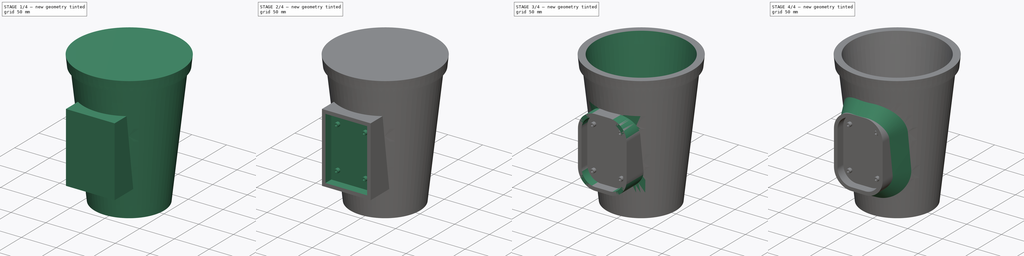
[diagram: build sequence overview — one tinted view per stage of 4, left to right]
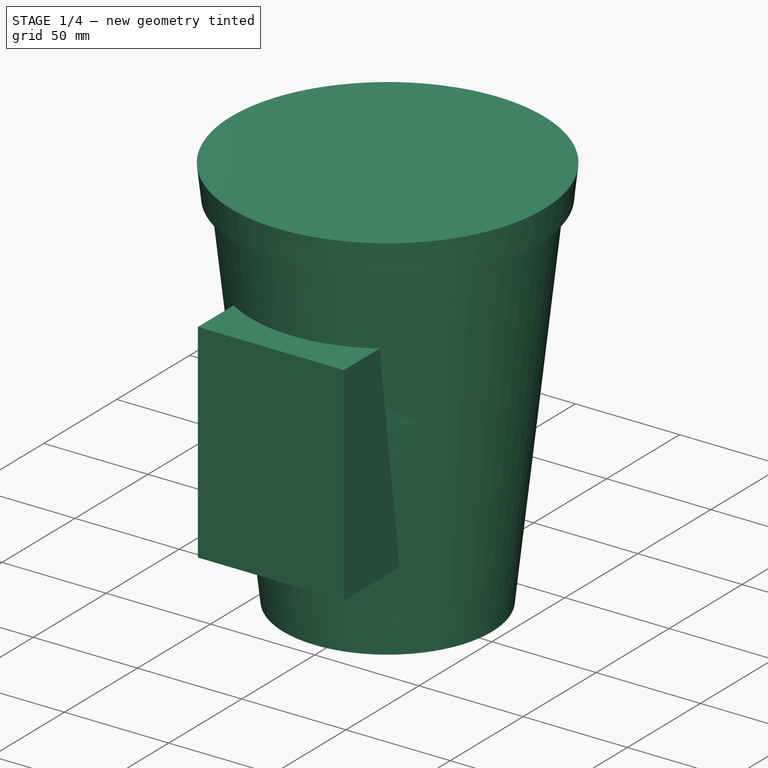
[diagram: stage 1 of 4 — iso view after this stage's code; geometry added in this stage tinted green]
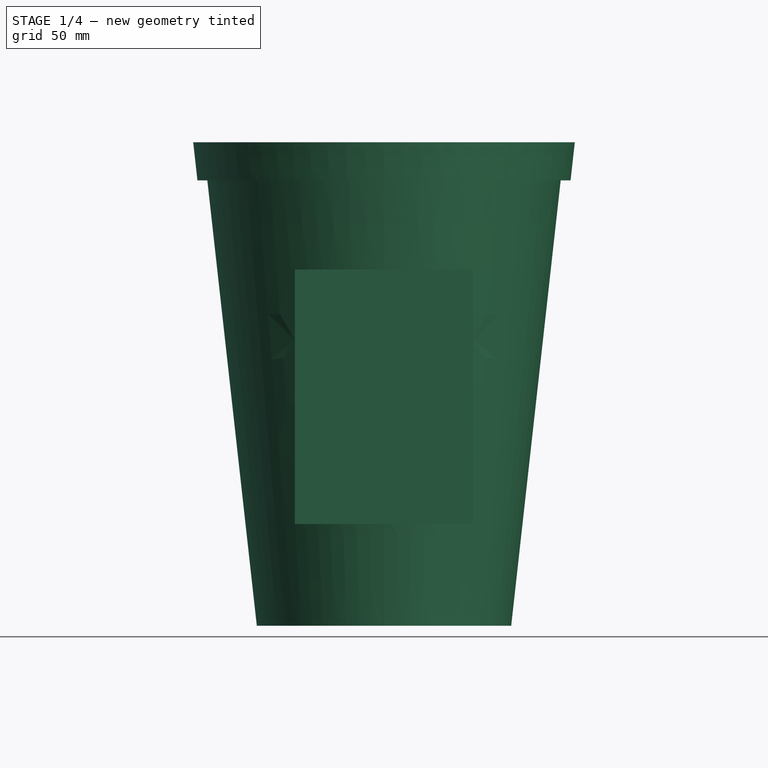
[diagram: stage 1 of 4 — front view after this stage's code; geometry added in this stage tinted green]
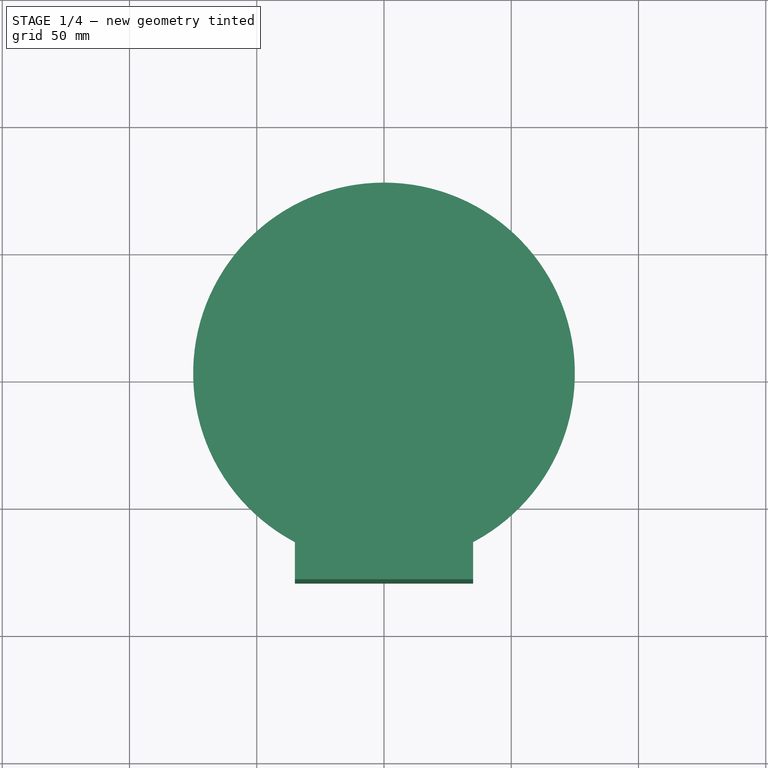
[diagram: stage 1 of 4 — top view after this stage's code; geometry added in this stage tinted green]
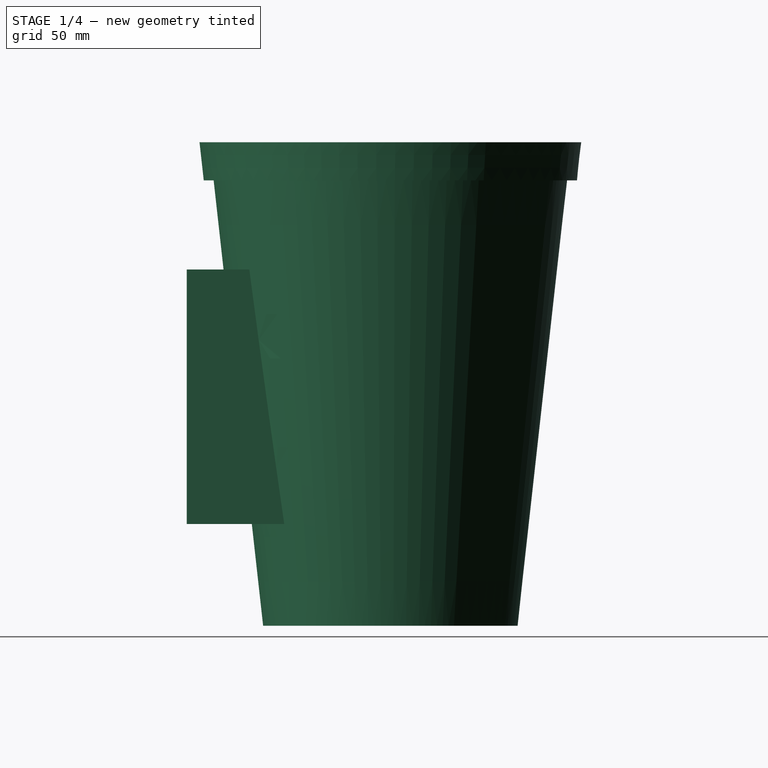
[diagram: stage 1 of 4 — right view after this stage's code; geometry added in this stage tinted green]
FCSTD DOCUMENT  (FreeCAD 0.19R14555 (Git shallow))
Label: vaso_pianta_suono
License: All rights reserved
LicenseURL: http://en.wikipedia.org/wiki/All_rights_reserved
objects: Sketcher::SketchObject×7, PartDesign::Pad×2, PartDesign::Revolution×2, PartDesign::Pocket×2, PartDesign::Mirrored×2, PartDesign::Fillet×2, PartDesign::MultiTransform×1, PartDesign::Groove×1, PartDesign::PolarPattern×1, PartDesign::Chamfer×1, PartDesign::Body×1
note: 32 computed .brp shape members not serialized (recipe doc carries the construction recipe); baked Part::Feature solids carry a one-line shape summary decoded from their .brp

FEATURE [Sketcher::SketchObject] Sketch
  FullyConstrained = true
  MapMode = 5
  Placement = pos=(0,0,0) rot=(1,0,0;1.5708rad)
  Support = -> [XZ_Plane]
  sketch-geometry (4):
    g0: LineSegment StartX=-35 StartY=50 StartZ=0 EndX=35 EndY=50 EndZ=0
    g1: LineSegment StartX=35 StartY=50 StartZ=0 EndX=35 EndY=-50 EndZ=0
    g2: LineSegment StartX=35 StartY=-50 StartZ=0 EndX=-35 EndY=-50 EndZ=0
    g3: LineSegment StartX=-35 StartY=-50 StartZ=0 EndX=-35 EndY=50 EndZ=0
  constraints (12):
    c: Coincident(g0,g1)
    c: Coincident(g1,g2)
    c: Coincident(g2,g3)
    c: Coincident(g3,g0)
    c: Horizontal(g0)
    c: Horizontal(g2)
    c: Vertical(g1)
    c: Vertical(g3)
    c: DistanceX(g0,g0) = 70
    c: DistanceY(g1,g1) = 100
    c: DistanceX(g-1,g0) = 35
    c: DistanceY(g-1,g0) = 50
FEATURE [PartDesign::Pad] Pad
  Direction = (1,1,1)
  Length = 80
  Length2 = 100
  Placement = pos=(0,0,0) rot=(1,0,0;1.5708rad)
  Profile = -> Sketch
  Type = 0
FEATURE [Sketcher::SketchObject] Sketch001
  FullyConstrained = true
  MapMode = 5
  Placement = pos=(0,0,0) rot=(0.57735,0.57735,0.57735;2.0944rad)
  Support = -> [YZ_Plane]
  sketch-geometry (4):
    g0: LineSegment StartX=-70 StartY=90 StartZ=0 EndX=-50 EndY=-90 EndZ=0
    g1: LineSegment StartX=-50 StartY=-90 StartZ=0 EndX=0 EndY=-90 EndZ=0
    g2: LineSegment StartX=0 StartY=-90 StartZ=0 EndX=0 EndY=90 EndZ=0
    g3: LineSegment StartX=0 StartY=90 StartZ=0 EndX=-70 EndY=90 EndZ=0
  constraints (12):
    c: Coincident(g0,g1)
    c: PointOnObject(g1,g-2)
    c: Horizontal(g1)
    c: Coincident(g1,g2)
    c: Vertical(g2)
    c: Coincident(g2,g3)
    c: Coincident(g3,g0)
    c: Horizontal(g3)
    c: DistanceY(g2,g2) = 180
    c: DistanceX(g1,g1) = 50
    c: DistanceX(g3,g3) = 70
    c: DistanceY(g-1,g2) = 90
FEATURE [PartDesign::Revolution] Revolution
  Angle = 360
  Axis = (-2e-16,3e-16,1)
  Base = (0,0,0)
  BaseFeature = -> Pad
  Placement = pos=(0,0,0) rot=(1,0,0;1.5708rad)
  Profile = -> Sketch001
  ReferenceAxis = -> Sketch001 [V_Axis]
FEATURE [Sketcher::SketchObject] Sketch002
  ExternalGeometry = -> [Revolution]
  FullyConstrained = true
  MapMode = 5
  Placement = pos=(0,0,0) rot=(0.57735,0.57735,0.57735;2.0944rad)
  Support = -> [YZ_Plane]
  sketch-geometry (4):
    g0: LineSegment StartX=-75 StartY=100 StartZ=0 EndX=0 EndY=100 EndZ=0
    g1: LineSegment StartX=0 StartY=100 StartZ=0 EndX=0 EndY=85 EndZ=0
    g2: LineSegment StartX=0 StartY=85 StartZ=0 EndX=-73.3333 EndY=85 EndZ=0
    g3: LineSegment StartX=-73.3333 StartY=85 StartZ=0 EndX=-75 EndY=100 EndZ=0
  constraints (12):
    c: PointOnObject(g0,g-2)
    c: Horizontal(g0)
    c: Coincident(g0,g1)
    c: PointOnObject(g1,g-2)
    c: Coincident(g1,g2)
    c: Horizontal(g2)
    c: Coincident(g2,g3)
    c: Coincident(g3,g0)
    c: DistanceY(g1,g1) = 15
    c: DistanceX(g0,g0) = 75
    c: DistanceY(g-1,g1) = 85
    c: Parallel(g-3,g3)
FEATURE [PartDesign::Revolution] Revolution001
  Angle = 360
  Axis = (-2e-16,3e-16,1)
  Base = (0,0,0)
  BaseFeature = -> Revolution
  Placement = pos=(0,0,0) rot=(1,0,0;1.5708rad)
  Profile = -> Sketch002
  ReferenceAxis = -> Sketch002 [V_Axis]
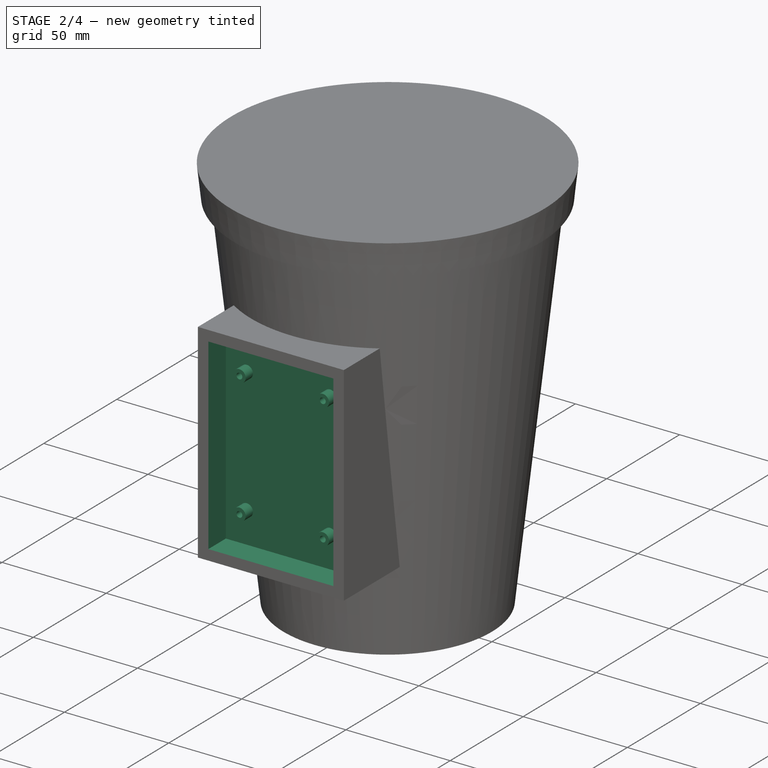
[diagram: stage 2 of 4 — iso view after this stage's code; geometry added in this stage tinted green]
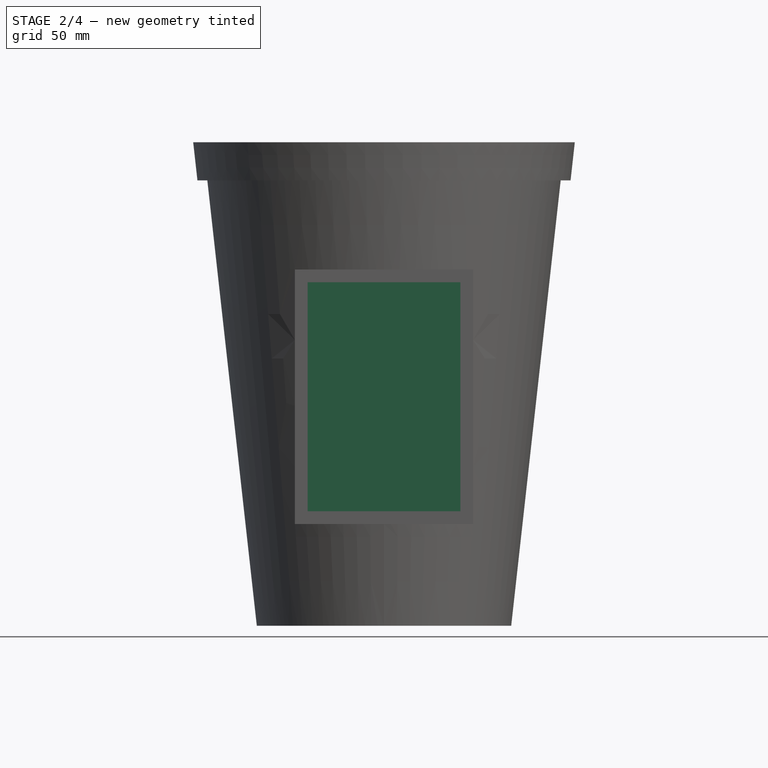
[diagram: stage 2 of 4 — front view after this stage's code; geometry added in this stage tinted green]
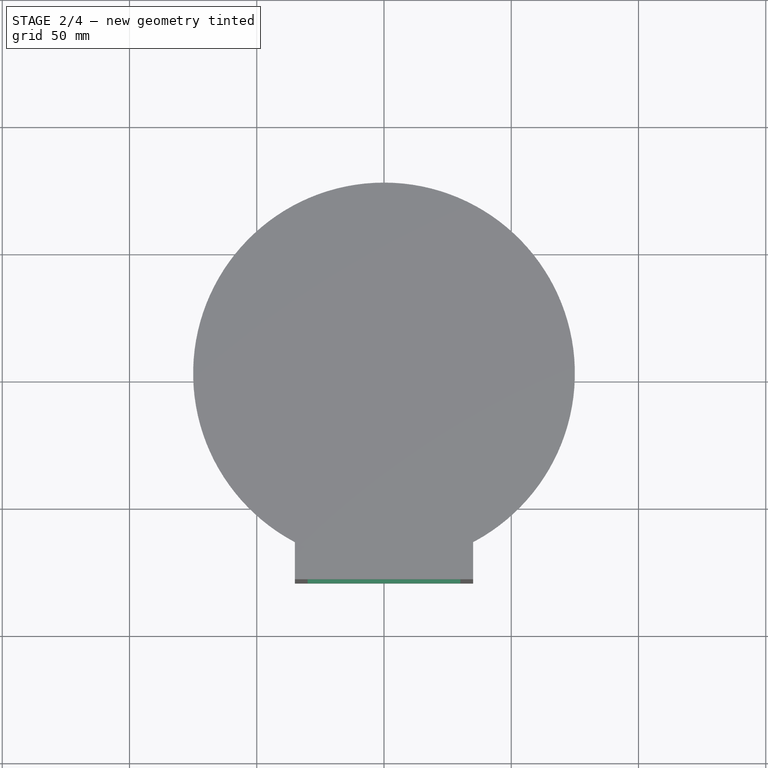
[diagram: stage 2 of 4 — top view after this stage's code; geometry added in this stage tinted green]
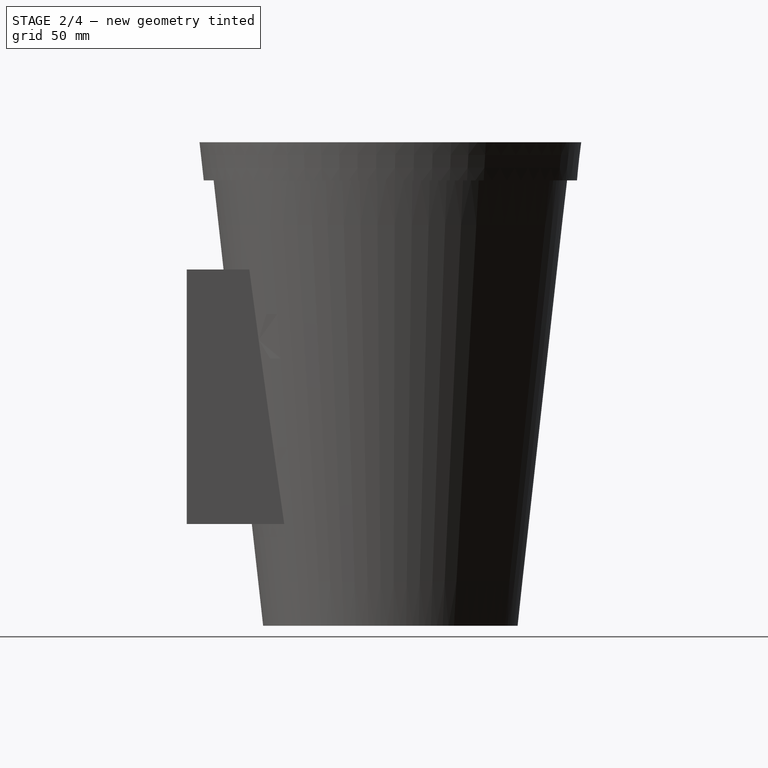
[diagram: stage 2 of 4 — right view after this stage's code; geometry added in this stage tinted green]
FEATURE [Sketcher::SketchObject] Sketch003
  FullyConstrained = true
  MapMode = 5
  Placement = pos=(0,-80,1.243e-13) rot=(1,0,0;1.5708rad)
  Support = -> [Revolution001]
  sketch-geometry (4):
    g0: LineSegment StartX=-30 StartY=45 StartZ=0 EndX=30 EndY=45 EndZ=0
    g1: LineSegment StartX=30 StartY=45 StartZ=0 EndX=30 EndY=-45 EndZ=0
    g2: LineSegment StartX=30 StartY=-45 StartZ=0 EndX=-30 EndY=-45 EndZ=0
    g3: LineSegment StartX=-30 StartY=-45 StartZ=0 EndX=-30 EndY=45 EndZ=0
  constraints (12):
    c: Coincident(g0,g1)
    c: Coincident(g1,g2)
    c: Coincident(g2,g3)
    c: Coincident(g3,g0)
    c: Horizontal(g0)
    c: Horizontal(g2)
    c: Vertical(g1)
    c: Vertical(g3)
    c: DistanceX(g0,g0) = 60
    c: DistanceY(g1,g1) = 90
    c: DistanceY(g-1,g0) = 45
    c: DistanceX(g-1,g0) = 30
FEATURE [PartDesign::Pocket] Pocket
  BaseFeature = -> Revolution001
  Length = 12
  Length2 = 100
  Placement = pos=(0,0,0) rot=(1,0,0;1.5708rad)
  Profile = -> Sketch003
  Type = 0
FEATURE [Sketcher::SketchObject] Sketch004
  FullyConstrained = true
  MapMode = 5
  Placement = pos=(0,-68,1.59e-13) rot=(1,0,0;1.5708rad)
  Support = -> [Pocket]
  sketch-geometry (2):
    g0: Circle CenterX=-20 CenterY=30 CenterZ=0 NormalX=0 NormalY=0 NormalZ=1 AngleXU=0 Radius=1.4
    g1: Circle CenterX=-20 CenterY=30 CenterZ=0 NormalX=0 NormalY=0 NormalZ=1 AngleXU=0 Radius=3
  constraints (5):
    c: Coincident(g1,g0)
    c: Radius(g1) = 3
    c: Radius(g0) = 1.4
    c: DistanceX(g0) = -20
    c: DistanceY(g0) = 30
FEATURE [PartDesign::Pad] Pad001
  BaseFeature = -> Pocket
  Direction = (1,1,1)
  Length = 5
  Length2 = 100
  Placement = pos=(0,0,0) rot=(1,0,0;1.5708rad)
  Profile = -> Sketch004
  Type = 0
FEATURE [PartDesign::Mirrored] Mirrored
  MirrorPlane = -> Sketch004 [V_Axis]
  Placement = pos=(0,0,0) rot=(1,0,0;1.5708rad)
FEATURE [PartDesign::Mirrored] Mirrored001
  MirrorPlane = -> Sketch004 [H_Axis]
  Placement = pos=(0,0,0) rot=(1,0,0;1.5708rad)
FEATURE [PartDesign::MultiTransform] MultiTransform
  BaseFeature = -> Pad001
  Originals = -> [Pad001]
  Placement = pos=(0,0,0) rot=(1,0,0;1.5708rad)
  Transformations = -> [Mirrored,Mirrored001]
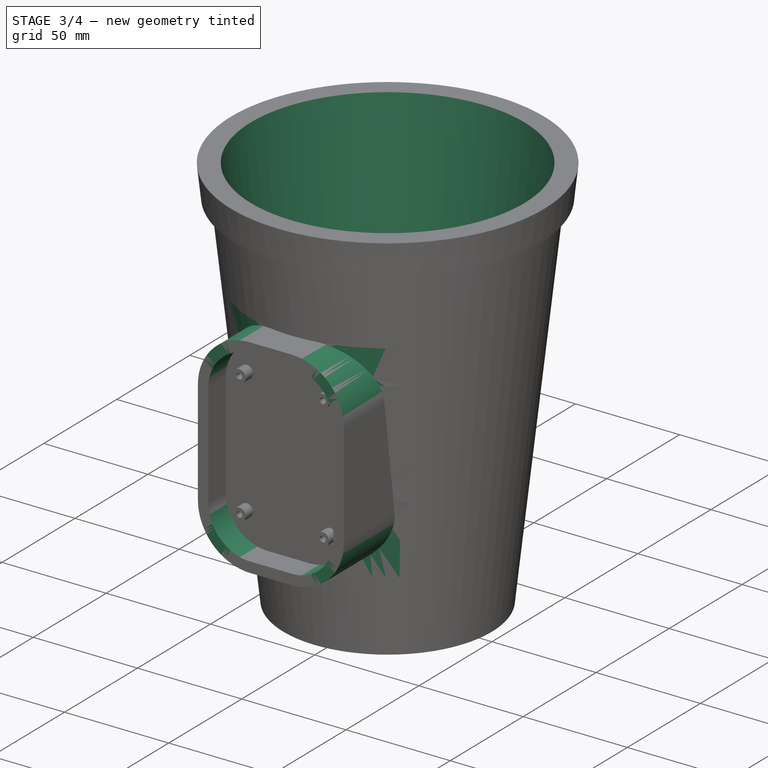
[diagram: stage 3 of 4 — iso view after this stage's code; geometry added in this stage tinted green]
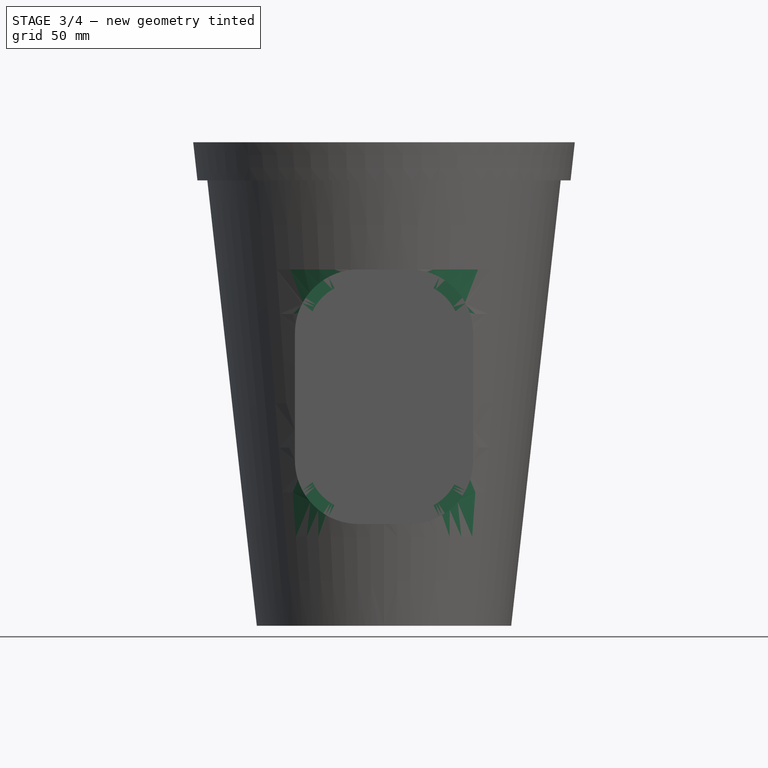
[diagram: stage 3 of 4 — front view after this stage's code; geometry added in this stage tinted green]
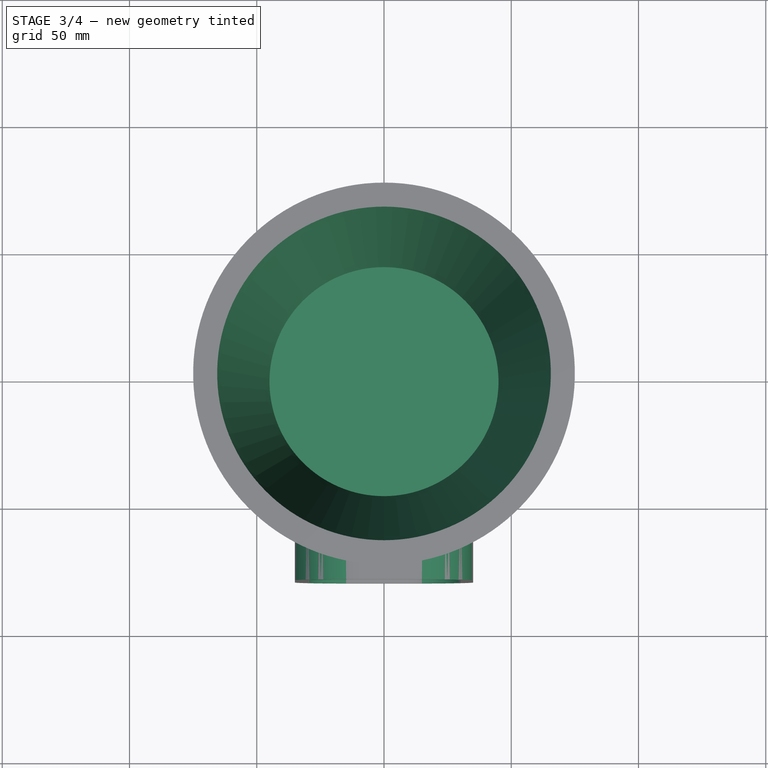
[diagram: stage 3 of 4 — top view after this stage's code; geometry added in this stage tinted green]
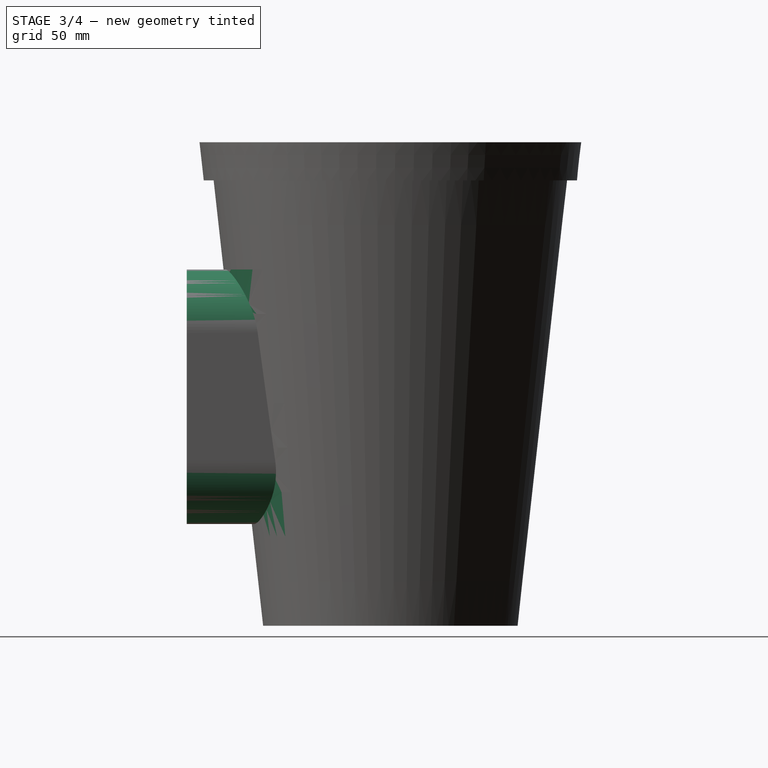
[diagram: stage 3 of 4 — right view after this stage's code; geometry added in this stage tinted green]
FEATURE [PartDesign::Fillet] Fillet
  Base = -> MultiTransform [Edge24,Edge25,Edge29,Edge27]
  BaseFeature = -> MultiTransform
  Placement = pos=(0,0,0) rot=(1,0,0;1.5708rad)
  Radius = 20
  SupportTransform = false
FEATURE [PartDesign::Fillet] Fillet001
  Base = -> Fillet [Edge32,Edge31,Edge36,Edge34]
  BaseFeature = -> Fillet
  Placement = pos=(0,0,0) rot=(1,0,0;1.5708rad)
  Radius = 25
  SupportTransform = false
FEATURE [Sketcher::SketchObject] Sketch005
  ExternalGeometry = -> [Fillet001]
  FullyConstrained = true
  MapMode = 5
  Placement = pos=(0,0,0) rot=(0.57735,0.57735,0.57735;2.0944rad)
  Support = -> [YZ_Plane]
  sketch-geometry (4):
    g0: LineSegment StartX=0 StartY=-85 StartZ=0 EndX=-45 EndY=-85 EndZ=0
    g1: LineSegment StartX=-45 StartY=-85 StartZ=0 EndX=-71.27 EndY=151.43 EndZ=0
    g2: LineSegment StartX=-71.27 StartY=151.43 StartZ=0 EndX=0 EndY=151.43 EndZ=0
    g3: LineSegment StartX=0 StartY=151.43 StartZ=0 EndX=0 EndY=-85 EndZ=0
  constraints (12):
    c: PointOnObject(g0,g-2)
    c: Horizontal(g0)
    c: Coincident(g0,g1)
    c: Coincident(g1,g2)
    c: PointOnObject(g2,g-2)
    c: Horizontal(g2)
    c: Coincident(g2,g3)
    c: Coincident(g3,g0)
    c: DistanceY(g0,g-1) = 85
    c: DistanceX(g0,g-1) = 45
    c: Parallel(g-3,g1)
    c: DistanceX(g2,g2) = 71.27
FEATURE [PartDesign::Groove] Groove
  Angle = 360
  Axis = (-2e-16,3e-16,1)
  Base = (0,0,0)
  BaseFeature = -> Fillet001
  Placement = pos=(0,0,0) rot=(1,0,0;1.5708rad)
  Profile = -> Sketch005
  ReferenceAxis = -> Sketch005 [V_Axis]
  Reversed = true
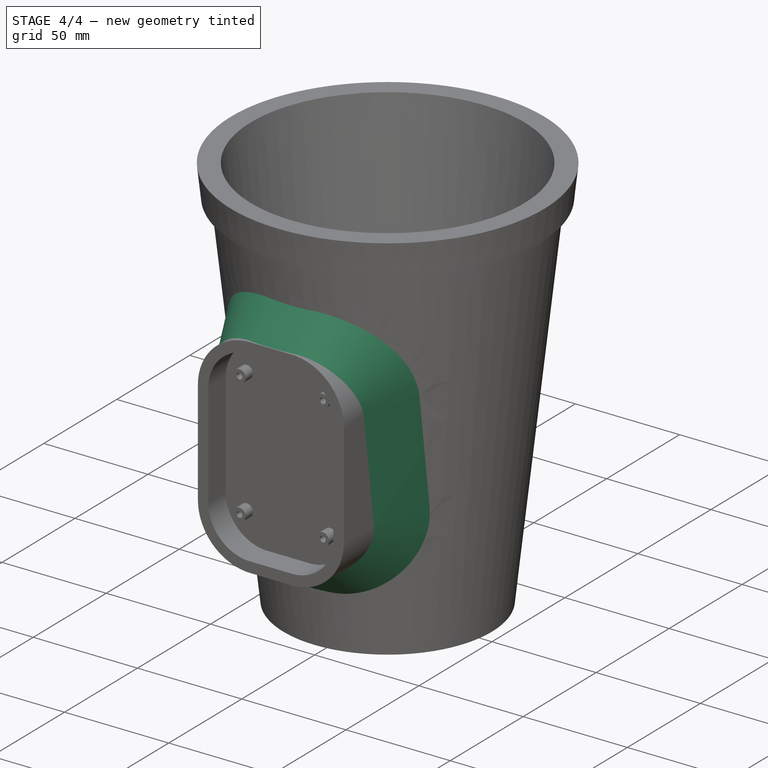
[diagram: stage 4 of 4 — iso view after this stage's code; geometry added in this stage tinted green]
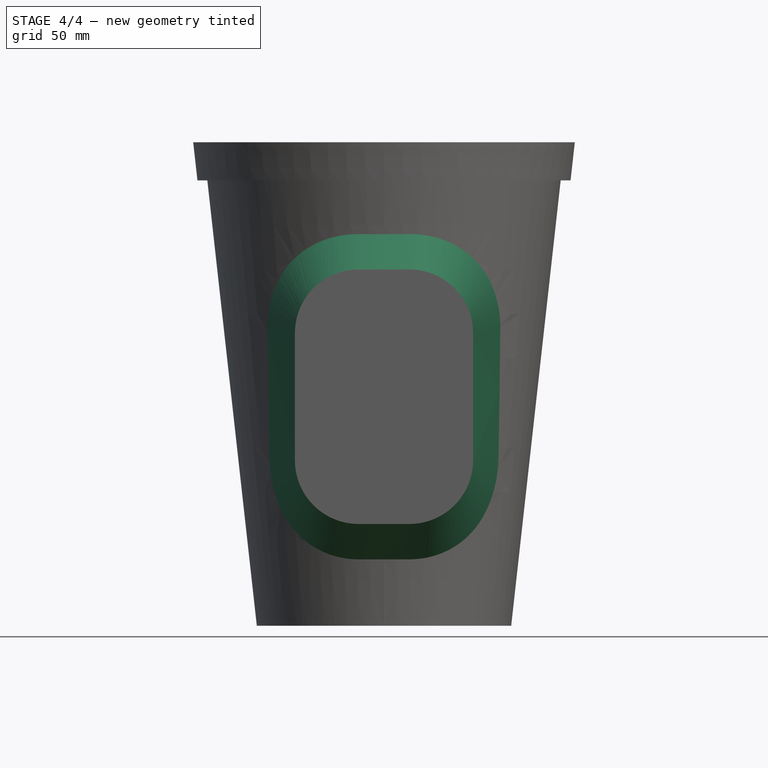
[diagram: stage 4 of 4 — front view after this stage's code; geometry added in this stage tinted green]
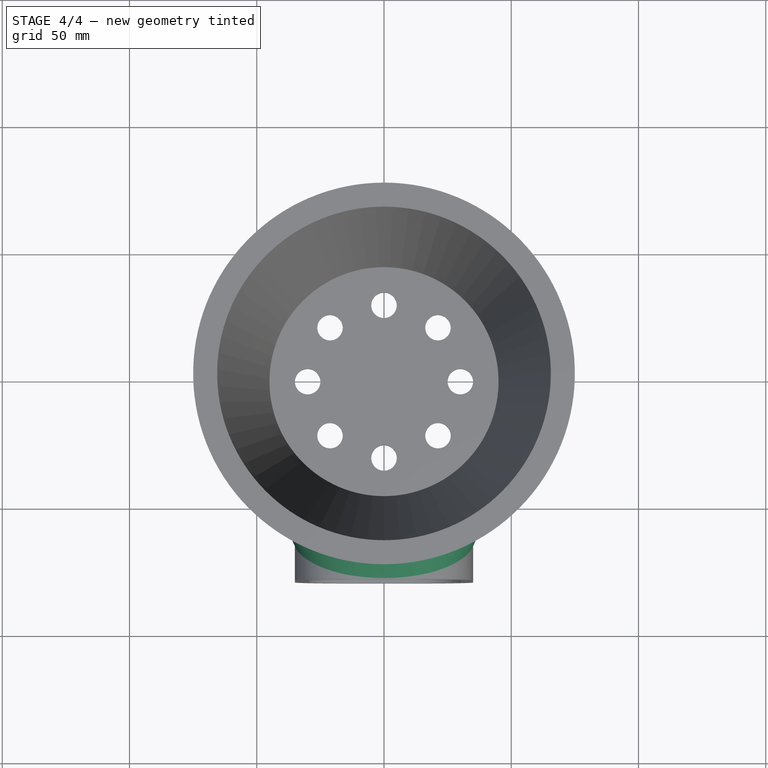
[diagram: stage 4 of 4 — top view after this stage's code; geometry added in this stage tinted green]
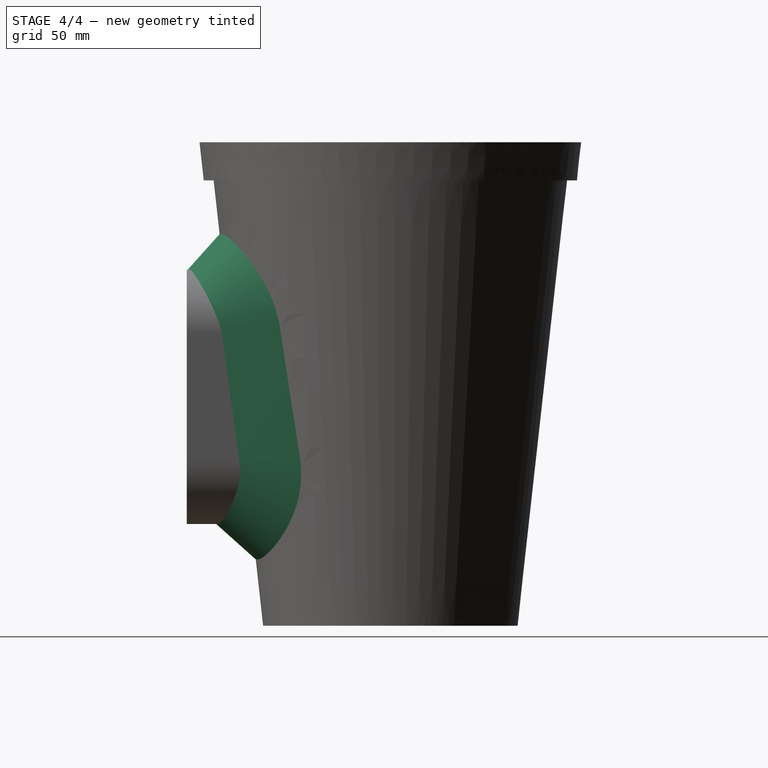
[diagram: stage 4 of 4 — right view after this stage's code; geometry added in this stage tinted green]
FEATURE [Sketcher::SketchObject] Sketch006
  FullyConstrained = true
  MapMode = 5
  Placement = pos=(2e-14,-2.248e-13,-90) rot=(1,0,0;3.14159rad)
  Support = -> [Groove]
  sketch-geometry (1):
    g0: Circle CenterX=0 CenterY=30 CenterZ=0 NormalX=0 NormalY=0 NormalZ=1 AngleXU=0 Radius=5
  constraints (3):
    c: PointOnObject(g0,g-2)
    c: Radius(g0) = 5
    c: DistanceY(g-1,g0) = 30
FEATURE [PartDesign::Pocket] Pocket001
  BaseFeature = -> Groove
  Length = 10
  Length2 = 100
  Placement = pos=(0,0,0) rot=(1,0,0;1.5708rad)
  Profile = -> Sketch006
  Type = 1
FEATURE [PartDesign::PolarPattern] PolarPattern
  Angle = 360
  Axis = -> Sketch006 [N_Axis]
  BaseFeature = -> Pocket001
  Occurrences = 8
  Originals = -> [Pocket001]
  Placement = pos=(0,0,0) rot=(1,0,0;1.5708rad)
FEATURE [PartDesign::Chamfer] Chamfer
  Angle = 45
  Base = -> PolarPattern [Edge34]
  BaseFeature = -> PolarPattern
  ChamferType = 0
  FlipDirection = false
  Placement = pos=(0,0,0) rot=(1,0,0;1.5708rad)
  Size = 14
  Size2 = 1
  SupportTransform = false
FEATURE [PartDesign::Body] Body  label="vaso"
  Group = -> [Sketch,Pad,Sketch001,Revolution,Sketch002,Revolution001,Sketch003,Pocket,Sketch004,Pad001,MultiTransform,Mirrored,Mirrored001,Fillet,Fillet001,Sketch005,Groove,Sketch006,Pocket001,PolarPattern,Chamfer]
  Origin = -> Origin
  Tip = -> Chamfer
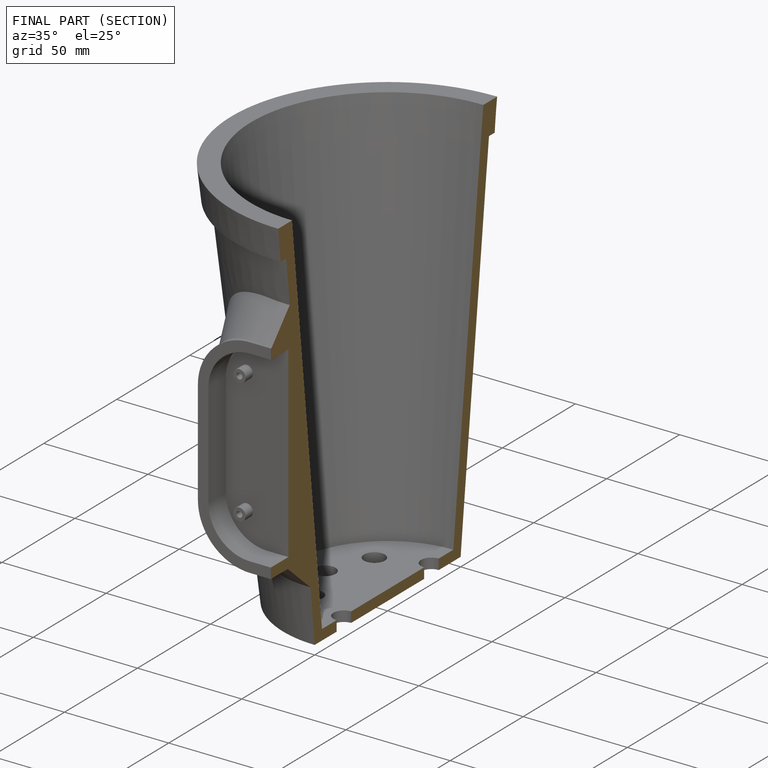
[diagram: finished part — half-section view (interior)]
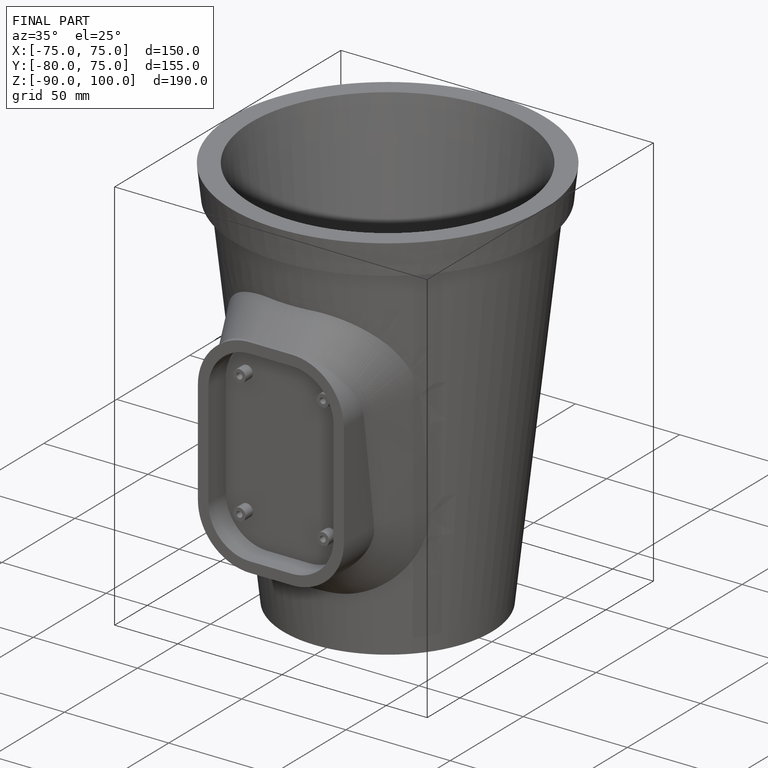
[diagram: finished part — iso view with bounding-box wireframe]
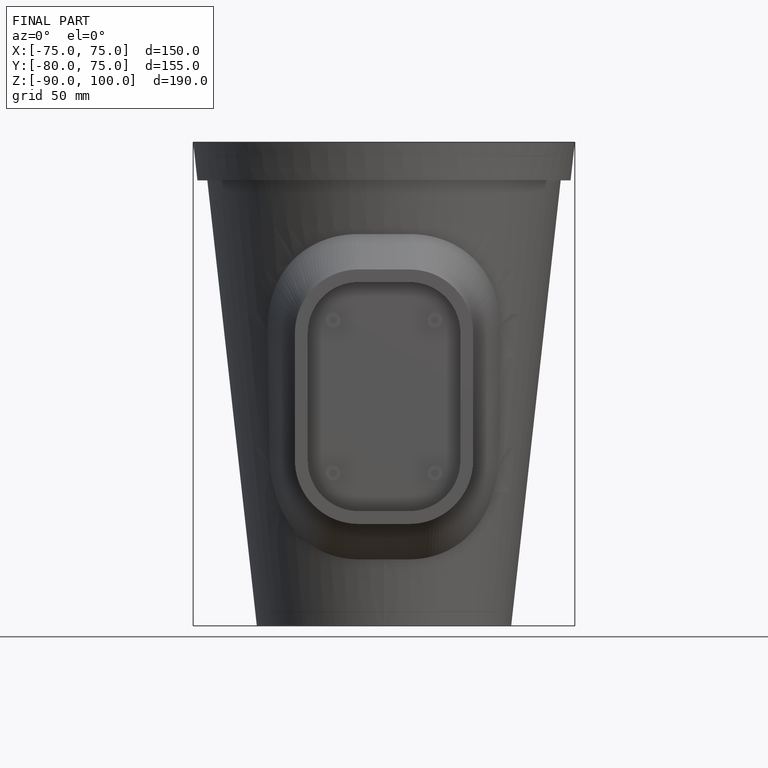
[diagram: finished part — front view with bounding-box wireframe]
